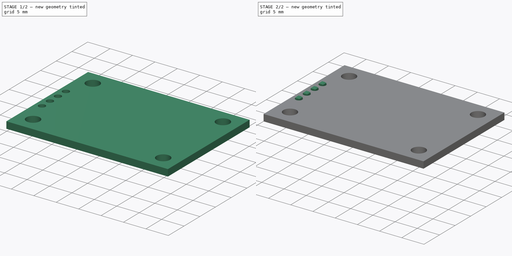
[diagram: build sequence overview — one tinted view per stage of 2, left to right]
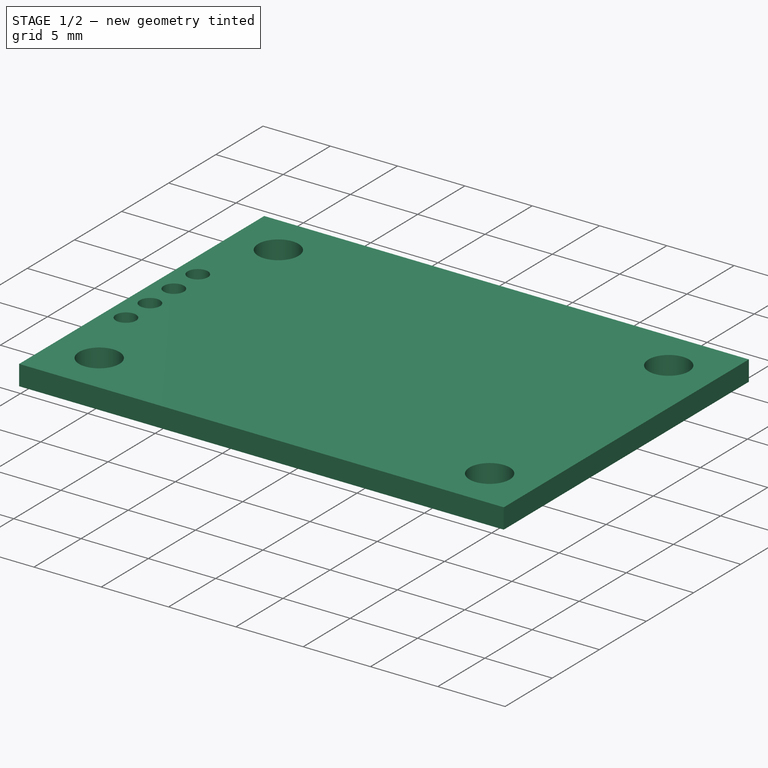
[diagram: stage 1 of 2 — iso view after this stage's code; geometry added in this stage tinted green]
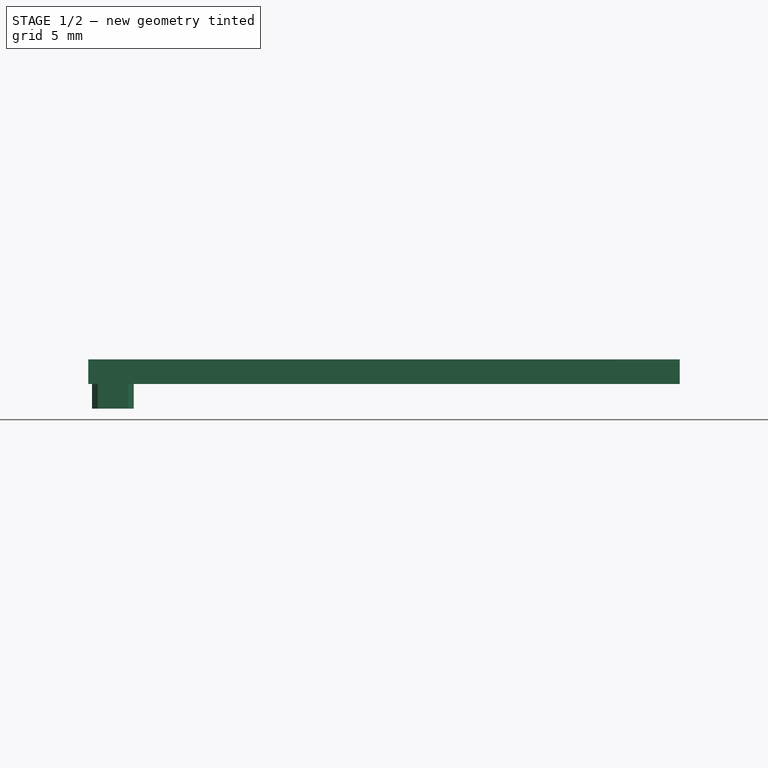
[diagram: stage 1 of 2 — front view after this stage's code; geometry added in this stage tinted green]
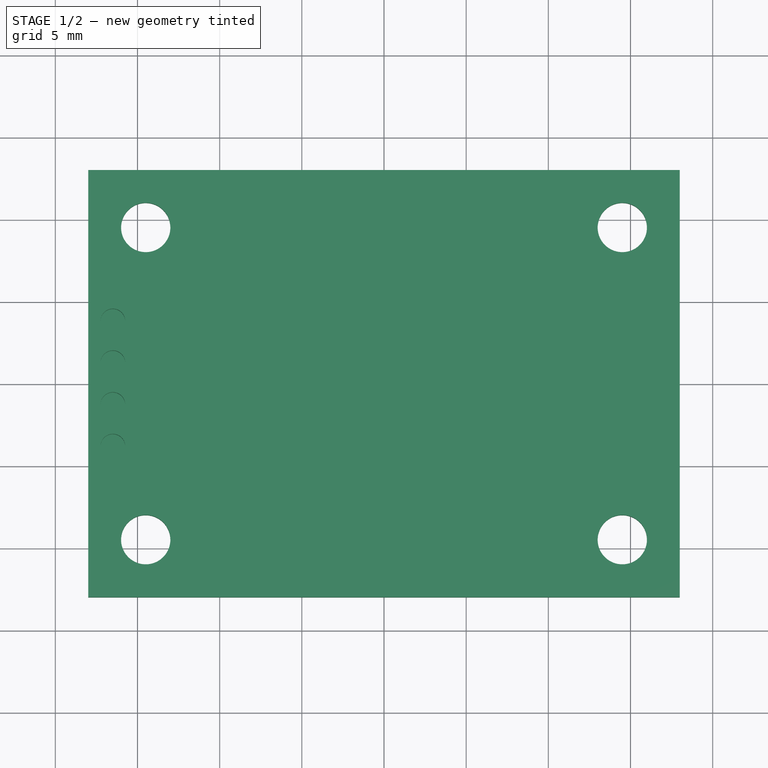
[diagram: stage 1 of 2 — top view after this stage's code; geometry added in this stage tinted green]
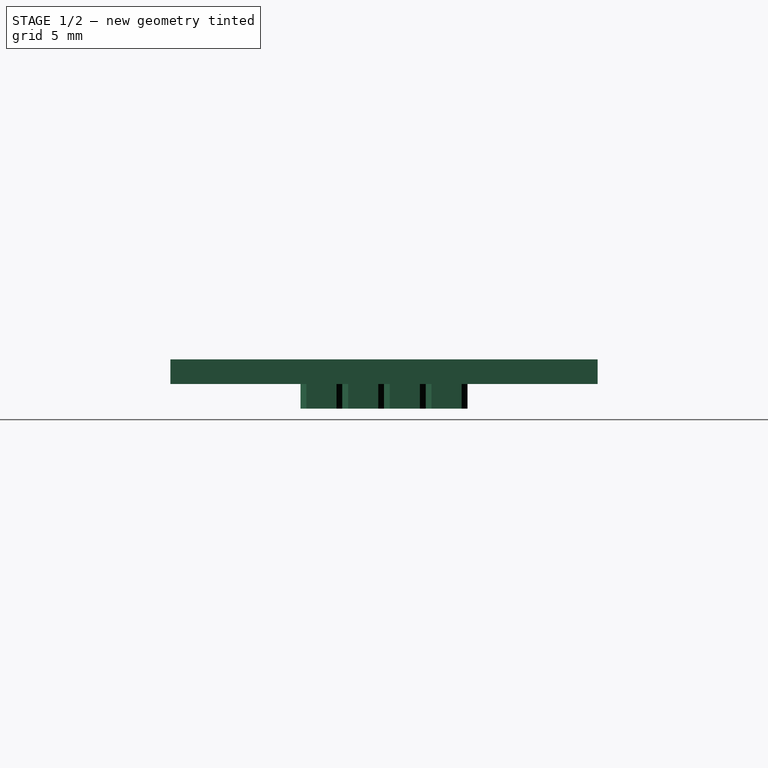
[diagram: stage 1 of 2 — right view after this stage's code; geometry added in this stage tinted green]
FCSTD DOCUMENT  (FreeCAD 1.0R39109 (Git))
Label: HiLetGo_GPS_Module
License: All rights reserved
LicenseURL: https://en.wikipedia.org/wiki/All_rights_reserved
objects: Sketcher::SketchObject×3, PartDesign::Pad×3, PartDesign::Chamfer×1, PartDesign::Body×1
note: 19 computed .brp shape members not serialized (recipe doc carries the construction recipe); baked Part::Feature solids carry a one-line shape summary decoded from their .brp

FEATURE [Sketcher::SketchObject] Sketch
  ArcFitTolerance = 1e-06
  AttachmentSupport = -> [XY_Plane]
  FullyConstrained = true
  MakeInternals = false
  MapMode = 5
  sketch-geometry (12):
    g0: LineSegment StartX=-18 StartY=13 StartZ=0 EndX=-18 EndY=-13 EndZ=0
    g1: LineSegment StartX=-18 StartY=-13 StartZ=0 EndX=18 EndY=-13 EndZ=0
    g2: LineSegment StartX=18 StartY=-13 StartZ=0 EndX=18 EndY=13 EndZ=0
    g3: LineSegment StartX=18 StartY=13 StartZ=0 EndX=-18 EndY=13 EndZ=0
    g4: Circle CenterX=-14.5 CenterY=9.5 CenterZ=0 NormalX=0 NormalY=0 NormalZ=1 AngleXU=0 Radius=1.5
    g5: Circle CenterX=14.5 CenterY=9.5 CenterZ=0 NormalX=0 NormalY=0 NormalZ=1 AngleXU=0 Radius=1.5
    g6: Circle CenterX=14.5 CenterY=-9.5 CenterZ=0 NormalX=0 NormalY=0 NormalZ=1 AngleXU=0 Radius=1.5
    g7: Circle CenterX=-14.5 CenterY=-9.5 CenterZ=0 NormalX=0 NormalY=0 NormalZ=1 AngleXU=0 Radius=1.5
    g8: Circle CenterX=-16.5 CenterY=3.81 CenterZ=0 NormalX=0 NormalY=0 NormalZ=1 AngleXU=0 Radius=0.75
    g9: Circle CenterX=-16.5 CenterY=1.27 CenterZ=0 NormalX=0 NormalY=0 NormalZ=1 AngleXU=0 Radius=0.75
    g10: Circle CenterX=-16.5 CenterY=-1.27 CenterZ=0 NormalX=0 NormalY=0 NormalZ=1 AngleXU=0 Radius=0.75
    g11: Circle CenterX=-16.5 CenterY=-3.81 CenterZ=0 NormalX=0 NormalY=0 NormalZ=1 AngleXU=0 Radius=0.75
  constraints (30):
    c: Coincident(g0,g1)
    c: Coincident(g1,g2)
    c: Coincident(g2,g3)
    c: Coincident(g3,g0)
    c: Vertical(g0)
    c: Vertical(g2)
    c: Horizontal(g1)
    c: Horizontal(g3)
    c: Symmetric(g0,g1,g-1)
    c: DistanceX(g3,g3) = 36
    c: DistanceY(g2,g2) = 26
    c: Equal(g4,g5)
    c: Equal(g4,g6)
    c: Equal(g4,g7)
    c: Diameter(g4) = 3
    c: Symmetric(g4,g5,g-2)
    c: Symmetric(g4,g7,g-1)
    c: Symmetric(g7,g6,g-2)
    c: DistanceX(g4,g5) = 29
    c: DistanceY(g7,g4) = 19
    c: Vertical(g8,g9)
    c: Symmetric(g10,g9,g-1)
    c: Symmetric(g11,g8,g-1)
    c: Distance(g8,g9) = 2.54
    c: DistanceY(g10,g9) = 2.54
    c: Equal(g8,g9)
    c: Equal(g8,g10)
    c: Equal(g8,g11)
    c: Diameter(g8) = 1.5
    c: Distance(g9,g0) = 1.5
FEATURE [PartDesign::Pad] Pad
  Direction = (0,0,1)
  Length = 1.5
  Length2 = 10
  Profile = -> Sketch
  ReferenceAxis = -> Sketch [N_Axis]
  Refine = true
  Suppressed = false
  Type = 0
FEATURE [Sketcher::SketchObject] Sketch001
  ArcFitTolerance = 1e-06
  AttachmentSupport = -> [Pad]
  ExternalGeometry = -> [Sketch]
  FullyConstrained = true
  MakeInternals = false
  MapMode = 5
  Placement = pos=(0,0,0) rot=(1,0,0;3.14159rad)
  sketch-geometry (64):
    g0: LineSegment StartX=-17.77 StartY=4.72645 StartZ=0 EndX=-17.77 EndY=2.89355 EndZ=0
    g1: LineSegment StartX=-17.4164 StartY=2.54 StartZ=0 EndX=-15.5836 EndY=2.54 EndZ=0
    g2: LineSegment StartX=-15.23 StartY=2.89355 StartZ=0 EndX=-15.23 EndY=4.72645 EndZ=0
    g3: LineSegment StartX=-15.5836 StartY=5.08 StartZ=0 EndX=-17.4164 EndY=5.08 EndZ=0
    g4: ArcOfCircle [constr] CenterX=-17.4164 CenterY=4.72645 CenterZ=0 NormalX=0 NormalY=0 NormalZ=1 AngleXU=0 Radius=0.353553 StartAngle=1.5708 EndAngle=3.14159
    g5: GeomPoint [constr] X=-17.77 Y=5.08 Z=0
    g6: LineSegment StartX=-17.4164 StartY=5.08 StartZ=0 EndX=-17.77 EndY=4.72645 EndZ=0
    g7: ArcOfCircle [constr] CenterX=-17.4164 CenterY=2.89355 CenterZ=0 NormalX=0 NormalY=0 NormalZ=1 AngleXU=0 Radius=0.353553 StartAngle=3.14159 EndAngle=4.71239
    g8: GeomPoint [constr] X=-17.77 Y=2.54 Z=0
    g9: LineSegment StartX=-17.77 StartY=2.89355 StartZ=0 EndX=-17.4164 EndY=2.54 EndZ=0
    g10: ArcOfCircle [constr] CenterX=-15.5836 CenterY=2.89355 CenterZ=0 NormalX=0 NormalY=0 NormalZ=1 AngleXU=0 Radius=0.353553 StartAngle=4.71239 EndAngle=6.28319
    g11: GeomPoint [constr] X=-15.23 Y=2.54 Z=0
    g12: LineSegment StartX=-15.5836 StartY=2.54 StartZ=0 EndX=-15.23 EndY=2.89355 EndZ=0
    g13: ArcOfCircle [constr] CenterX=-15.5836 CenterY=4.72645 CenterZ=0 NormalX=0 NormalY=0 NormalZ=1 AngleXU=0 Radius=0.353553 StartAngle=0 EndAngle=1.5708
    g14: GeomPoint [constr] X=-15.23 Y=5.08 Z=0
    g15: LineSegment StartX=-15.23 StartY=4.72645 StartZ=0 EndX=-15.5836 EndY=5.08 EndZ=0
    g16: LineSegment StartX=-17.77 StartY=2.18645 StartZ=0 EndX=-17.77 EndY=0.353553 EndZ=0
    g17: LineSegment StartX=-17.4164 StartY=0 StartZ=0 EndX=-15.5836 EndY=0 EndZ=0
    g18: LineSegment StartX=-15.23 StartY=0.353553 StartZ=0 EndX=-15.23 EndY=2.18645 EndZ=0
    g19: LineSegment StartX=-15.5836 StartY=2.54 StartZ=0 EndX=-17.4164 EndY=2.54 EndZ=0
    g20: ArcOfCircle [constr] CenterX=-17.4164 CenterY=2.18645 CenterZ=0 NormalX=0 NormalY=0 NormalZ=1 AngleXU=0 Radius=0.353553 StartAngle=1.5708 EndAngle=3.14159
    g21: GeomPoint [constr] X=-17.77 Y=2.54 Z=0
    g22: LineSegment StartX=-17.4164 StartY=2.54 StartZ=0 EndX=-17.77 EndY=2.18645 EndZ=0
    g23: ArcOfCircle [constr] CenterX=-15.5836 CenterY=2.18645 CenterZ=0 NormalX=0 NormalY=0 NormalZ=1 AngleXU=0 Radius=0.353553 StartAngle=0 EndAngle=1.5708
    g24: GeomPoint [constr] X=-15.23 Y=2.54 Z=0
    g25: LineSegment StartX=-15.23 StartY=2.18645 StartZ=0 EndX=-15.5836 EndY=2.54 EndZ=0
    g26: ArcOfCircle [constr] CenterX=-15.5836 CenterY=0.353553 CenterZ=0 NormalX=0 NormalY=0 NormalZ=1 AngleXU=0 Radius=0.353553 StartAngle=4.71239 EndAngle=6.28319
    g27: GeomPoint [constr] X=-15.23 Y=0 Z=0
    g28: LineSegment StartX=-15.5836 StartY=0 StartZ=0 EndX=-15.23 EndY=0.353553 EndZ=0
    g29: ArcOfCircle [constr] CenterX=-17.4164 CenterY=0.353553 CenterZ=0 NormalX=0 NormalY=0 NormalZ=1 AngleXU=0 Radius=0.353553 StartAngle=3.14159 EndAngle=4.71239
    g30: GeomPoint [constr] X=-17.77 Y=0 Z=0
    g31: LineSegment StartX=-17.77 StartY=0.353553 StartZ=0 EndX=-17.4164 EndY=0 EndZ=0
    g32: LineSegment StartX=-17.77 StartY=-0.353553 StartZ=0 EndX=-17.77 EndY=-2.18645 EndZ=0
    g33: LineSegment StartX=-17.4164 StartY=-2.54 StartZ=0 EndX=-15.5836 EndY=-2.54 EndZ=0
    g34: LineSegment StartX=-15.23 StartY=-2.18645 StartZ=0 EndX=-15.23 EndY=-0.353553 EndZ=0
    g35: LineSegment StartX=-15.5836 StartY=2.9e-15 StartZ=0 EndX=-17.4164 EndY=2.9e-15 EndZ=0
    g36: ArcOfCircle [constr] CenterX=-17.4164 CenterY=-0.353553 CenterZ=0 NormalX=0 NormalY=0 NormalZ=1 AngleXU=0 Radius=0.353553 StartAngle=1.5708 EndAngle=3.14159
    g37: GeomPoint [constr] X=-17.77 Y=3e-15 Z=0
    g38: LineSegment StartX=-17.4164 StartY=2.9e-15 StartZ=0 EndX=-17.77 EndY=-0.353553 EndZ=0
    g39: ArcOfCircle [constr] CenterX=-15.5836 CenterY=-0.353553 CenterZ=0 NormalX=0 NormalY=0 NormalZ=1 AngleXU=0 Radius=0.353553 StartAngle=0 EndAngle=1.5708
    g40: GeomPoint [constr] X=-15.23 Y=3e-15 Z=0
    g41: LineSegment StartX=-15.23 StartY=-0.353553 StartZ=0 EndX=-15.5836 EndY=2.9e-15 EndZ=0
    g42: ArcOfCircle [constr] CenterX=-15.5836 CenterY=-2.18645 CenterZ=0 NormalX=0 NormalY=0 NormalZ=1 AngleXU=0 Radius=0.353553 StartAngle=4.71239 EndAngle=6.28319
    g43: GeomPoint [constr] X=-15.23 Y=-2.54 Z=0
    g44: LineSegment StartX=-15.5836 StartY=-2.54 StartZ=0 EndX=-15.23 EndY=-2.18645 EndZ=0
    g45: ArcOfCircle [constr] CenterX=-17.4164 CenterY=-2.18645 CenterZ=0 NormalX=0 NormalY=0 NormalZ=1 AngleXU=0 Radius=0.353553 StartAngle=3.14159 EndAngle=4.71239
    g46: GeomPoint [constr] X=-17.77 Y=-2.54 Z=0
    g47: LineSegment StartX=-17.77 StartY=-2.18645 StartZ=0 EndX=-17.4164 EndY=-2.54 EndZ=0
    g48: LineSegment StartX=-17.77 StartY=-2.89355 StartZ=0 EndX=-17.77 EndY=-4.72645 EndZ=0
    g49: LineSegment StartX=-17.4164 StartY=-5.08 StartZ=0 EndX=-15.5836 EndY=-5.08 EndZ=0
    g50: LineSegment StartX=-15.23 StartY=-4.72645 StartZ=0 EndX=-15.23 EndY=-2.89355 EndZ=0
    g51: LineSegment StartX=-15.5836 StartY=-2.54 StartZ=0 EndX=-17.4164 EndY=-2.54 EndZ=0
    g52: ArcOfCircle [constr] CenterX=-17.4164 CenterY=-2.89355 CenterZ=0 NormalX=0 NormalY=0 NormalZ=1 AngleXU=0 Radius=0.353553 StartAngle=1.5708 EndAngle=3.14159
    g53: GeomPoint [constr] X=-17.77 Y=-2.54 Z=0
    g54: LineSegment StartX=-17.4164 StartY=-2.54 StartZ=0 EndX=-17.77 EndY=-2.89355 EndZ=0
    g55: ArcOfCircle [constr] CenterX=-15.5836 CenterY=-2.89355 CenterZ=0 NormalX=0 NormalY=0 NormalZ=1 AngleXU=0 Radius=0.353553 StartAngle=5e-16 EndAngle=1.5708
    g56: GeomPoint [constr] X=-15.23 Y=-2.54 Z=0
    g57: LineSegment StartX=-15.23 StartY=-2.89355 StartZ=0 EndX=-15.5836 EndY=-2.54 EndZ=0
    g58: ArcOfCircle [constr] CenterX=-15.5836 CenterY=-4.72645 CenterZ=0 NormalX=0 NormalY=0 NormalZ=1 AngleXU=0 Radius=0.353553 StartAngle=4.71239 EndAngle=6.28319
    g59: GeomPoint [constr] X=-15.23 Y=-5.08 Z=0
    g60: LineSegment StartX=-15.5836 StartY=-5.08 StartZ=0 EndX=-15.23 EndY=-4.72645 EndZ=0
    g61: ArcOfCircle [constr] CenterX=-17.4164 CenterY=-4.72645 CenterZ=0 NormalX=0 NormalY=0 NormalZ=1 AngleXU=0 Radius=0.353553 StartAngle=3.14159 EndAngle=4.71239
    g62: GeomPoint [constr] X=-17.77 Y=-5.08 Z=0
    g63: LineSegment StartX=-17.77 StartY=-4.72645 StartZ=0 EndX=-17.4164 EndY=-5.08 EndZ=0
  constraints (139):
    c: Vertical(g0)
    c: Vertical(g2)
    c: Horizontal(g1)
    c: Horizontal(g3)
    c: Symmetric(g5,g11,g-3)
    c: Distance(g14,g5) = 2.54
    c: PointOnObject(g5,g3)
    c: PointOnObject(g5,g0)
    c: Tangent(g3,g4) = -1.5708
    c: Tangent(g0,g4) = -1.5708
    c: Coincident(g6,g3)
    c: Coincident(g6,g0)
    c: PointOnObject(g8,g0)
    c: PointOnObject(g8,g1)
    c: Tangent(g0,g7) = -1.5708
    c: Tangent(g1,g7) = -1.5708
    c: Coincident(g9,g0)
    c: Coincident(g9,g1)
    c: PointOnObject(g11,g1)
    c: Tangent(g1,g10) = -1.5708
    c: Tangent(g2,g10) = -1.5708
    c: Coincident(g12,g1)
    c: Coincident(g12,g2)
    c: PointOnObject(g14,g2)
    c: PointOnObject(g14,g3)
    c: Tangent(g2,g13) = -1.5708
    c: Tangent(g3,g13) = -1.5708
    c: Coincident(g15,g2)
    c: Coincident(g15,g3)
    c: Distance(g6,g6) = 0.5
    c: Equal(g6,g15)
    c: Equal(g6,g9)
    c: Equal(g3,g2)
    c: Symmetric(g4,g10,g-3)
    c: Vertical(g16)
    c: Vertical(g18)
    c: Horizontal(g17)
    c: Horizontal(g19)
    c: PointOnObject(g27,g-1)
    c: PointOnObject(g21,g16)
    c: PointOnObject(g21,g19)
    c: Tangent(g16,g20) = -1.5708
    c: Tangent(g19,g20) = -1.5708
    c: Coincident(g22,g16)
    c: Coincident(g22,g19)
    c: PointOnObject(g24,g19)
    c: PointOnObject(g24,g18)
    c: Tangent(g19,g23) = -1.5708
    c: Tangent(g18,g23) = -1.5708
    c: Coincident(g25,g19)
    c: Coincident(g25,g18)
    c: PointOnObject(g27,g18)
    c: PointOnObject(g27,g17)
    c: Tangent(g18,g26) = -1.5708
    c: Tangent(g17,g26) = -1.5708
    c: Coincident(g28,g18)
    c: Coincident(g28,g17)
    c: PointOnObject(g30,g16)
    c: PointOnObject(g30,g17)
    c: Tangent(g16,g29) = -1.5708
    c: Tangent(g17,g29) = -1.5708
    c: Coincident(g31,g16)
    c: Coincident(g31,g17)
    c: Equal(g6,g22)
    c: Equal(g22,g25)
    c: Equal(g22,g31)
    c: Equal(g22,g28)
    c: Equal(g3,g19)
    c: Symmetric(g20,g26,g-4)
    c: Vertical(g32)
    c: Vertical(g34)
    c: Horizontal(g33)
    c: Horizontal(g35)
    c: PointOnObject(g37,g32)
    c: PointOnObject(g37,g35)
    c: Tangent(g32,g36) = -1.5708
    c: Tangent(g35,g36) = -1.5708
    c: Coincident(g38,g32)
    c: Coincident(g38,g35)
    c: PointOnObject(g40,g35)
    c: PointOnObject(g40,g34)
    c: Tangent(g35,g39) = -1.5708
    c: Tangent(g34,g39) = -1.5708
    c: Coincident(g41,g35)
    c: Coincident(g41,g34)
    c: PointOnObject(g43,g34)
    c: PointOnObject(g43,g33)
    c: Tangent(g34,g42) = -1.5708
    c: Tangent(g33,g42) = -1.5708
    c: Coincident(g44,g34)
    c: Coincident(g44,g33)
    c: PointOnObject(g46,g33)
    c: PointOnObject(g46,g32)
    c: Tangent(g33,g45) = -1.5708
    c: Tangent(g32,g45) = -1.5708
    c: Coincident(g47,g33)
    c: Coincident(g47,g32)
    c: Equal(g31,g38)
    c: Equal(g38,g41)
    c: Equal(g41,g44)
    c: Equal(g44,g47)
    c: Equal(g17,g35)
    c: Equal(g35,g34)
    c: Symmetric(g36,g42,g-5)
    c: Vertical(g48)
    c: Vertical(g50)
    c: Horizontal(g49)
    c: Horizontal(g51)
    c: PointOnObject(g53,g48)
    c: PointOnObject(g53,g51)
    c: Tangent(g48,g52) = -1.5708
    c: Tangent(g51,g52) = -1.5708
    c: Coincident(g54,g48)
    c: Coincident(g54,g51)
    c: PointOnObject(g56,g51)
    c: PointOnObject(g56,g50)
    c: Tangent(g51,g55) = -1.5708
    c: Tangent(g50,g55) = -1.5708
    c: Coincident(g57,g51)
    c: Coincident(g57,g50)
    c: PointOnObject(g59,g50)
    c: PointOnObject(g59,g49)
    c: Tangent(g50,g58) = -1.5708
    c: Tangent(g49,g58) = -1.5708
    c: Coincident(g60,g50)
    c: Coincident(g60,g49)
    c: PointOnObject(g62,g49)
    c: PointOnObject(g62,g48)
    c: Tangent(g49,g61) = -1.5708
    c: Tangent(g48,g61) = -1.5708
    c: Coincident(g63,g49)
    c: Coincident(g63,g48)
    c: Equal(g47,g54)
    c: Equal(g54,g57)
    c: Equal(g57,g60)
    c: Equal(g60,g63)
    c: Equal(g33,g51)
    c: Equal(g51,g50)
    c: Symmetric(g52,g58,g-6)
FEATURE [PartDesign::Pad] Pad001
  BaseFeature = -> Pad
  Direction = (0,0,-1)
  Length = 1.5
  Length2 = 10
  Profile = -> Sketch001
  ReferenceAxis = -> Sketch001 [N_Axis]
  Refine = true
  Suppressed = false
  Type = 0
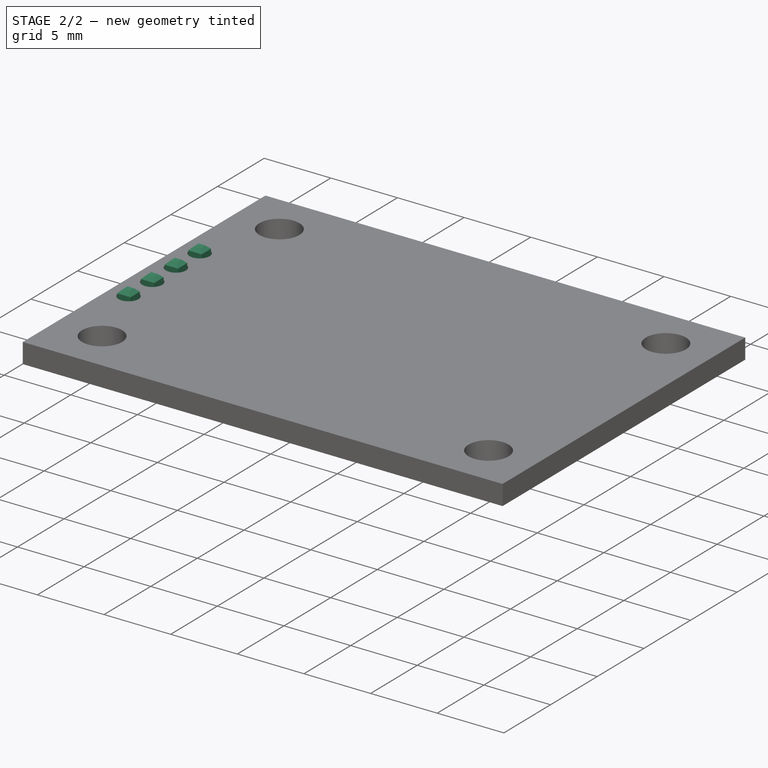
[diagram: stage 2 of 2 — iso view after this stage's code; geometry added in this stage tinted green]
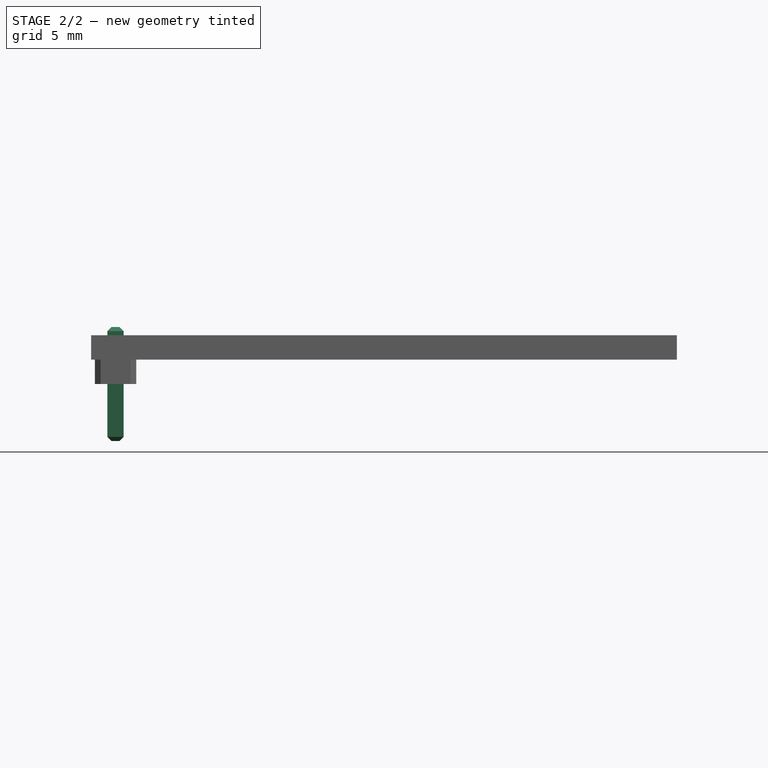
[diagram: stage 2 of 2 — front view after this stage's code; geometry added in this stage tinted green]
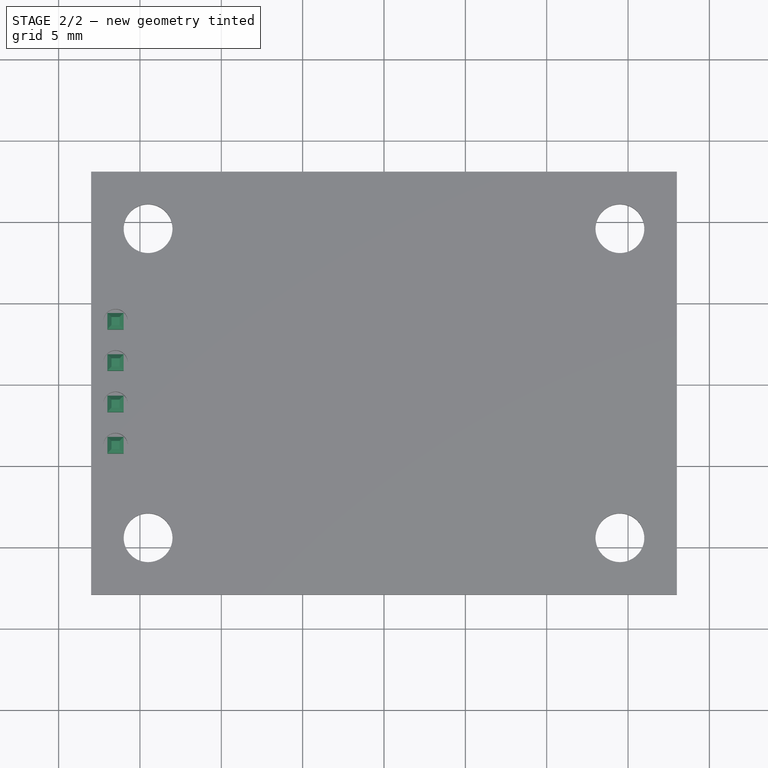
[diagram: stage 2 of 2 — top view after this stage's code; geometry added in this stage tinted green]
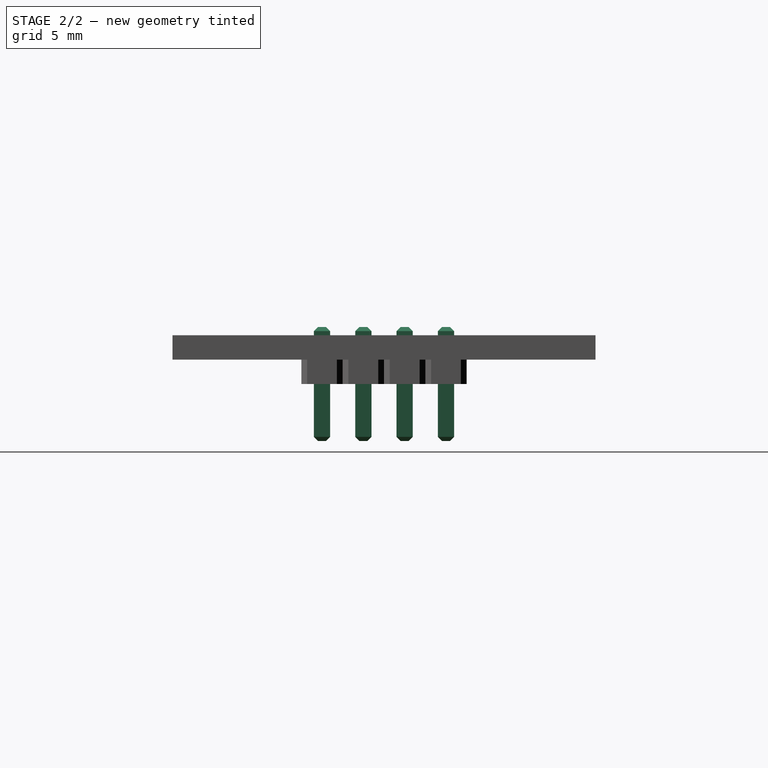
[diagram: stage 2 of 2 — right view after this stage's code; geometry added in this stage tinted green]
FEATURE [Sketcher::SketchObject] Sketch002
  ArcFitTolerance = 1e-06
  AttachmentSupport = -> [Pad001]
  ExternalGeometry = -> [Sketch]
  FullyConstrained = true
  MakeInternals = false
  MapMode = 5
  Placement = pos=(0,0,-1.5) rot=(1,0,0;3.14159rad)
  sketch-geometry (16):
    g0: LineSegment StartX=-17 StartY=4.31 StartZ=0 EndX=-17 EndY=3.31 EndZ=0
    g1: LineSegment StartX=-17 StartY=3.31 StartZ=0 EndX=-16 EndY=3.31 EndZ=0
    g2: LineSegment StartX=-16 StartY=3.31 StartZ=0 EndX=-16 EndY=4.31 EndZ=0
    g3: LineSegment StartX=-16 StartY=4.31 StartZ=0 EndX=-17 EndY=4.31 EndZ=0
    g4: LineSegment StartX=-17 StartY=1.77 StartZ=0 EndX=-17 EndY=0.77 EndZ=0
    g5: LineSegment StartX=-17 StartY=0.77 StartZ=0 EndX=-16 EndY=0.77 EndZ=0
    g6: LineSegment StartX=-16 StartY=0.77 StartZ=0 EndX=-16 EndY=1.77 EndZ=0
    g7: LineSegment StartX=-16 StartY=1.77 StartZ=0 EndX=-17 EndY=1.77 EndZ=0
    g8: LineSegment StartX=-17 StartY=-0.77 StartZ=0 EndX=-17 EndY=-1.77 EndZ=0
    g9: LineSegment StartX=-17 StartY=-1.77 StartZ=0 EndX=-16 EndY=-1.77 EndZ=0
    g10: LineSegment StartX=-16 StartY=-1.77 StartZ=0 EndX=-16 EndY=-0.77 EndZ=0
    g11: LineSegment StartX=-16 StartY=-0.77 StartZ=0 EndX=-17 EndY=-0.77 EndZ=0
    g12: LineSegment StartX=-17 StartY=-3.31 StartZ=0 EndX=-17 EndY=-4.31 EndZ=0
    g13: LineSegment StartX=-17 StartY=-4.31 StartZ=0 EndX=-16 EndY=-4.31 EndZ=0
    g14: LineSegment StartX=-16 StartY=-4.31 StartZ=0 EndX=-16 EndY=-3.31 EndZ=0
    g15: LineSegment StartX=-16 StartY=-3.31 StartZ=0 EndX=-17 EndY=-3.31 EndZ=0
  constraints (46):
    c: Coincident(g0,g1)
    c: Coincident(g1,g2)
    c: Coincident(g2,g3)
    c: Coincident(g3,g0)
    c: Vertical(g0)
    c: Vertical(g2)
    c: Horizontal(g1)
    c: Horizontal(g3)
    c: Coincident(g4,g5)
    c: Coincident(g5,g6)
    c: Coincident(g6,g7)
    c: Coincident(g7,g4)
    c: Vertical(g4)
    c: Vertical(g6)
    c: Horizontal(g5)
    c: Horizontal(g7)
    c: Coincident(g8,g9)
    c: Coincident(g9,g10)
    c: Coincident(g10,g11)
    c: Coincident(g11,g8)
    c: Vertical(g8)
    c: Vertical(g10)
    c: Horizontal(g9)
    c: Horizontal(g11)
    c: Coincident(g12,g13)
    c: Coincident(g13,g14)
    c: Coincident(g14,g15)
    c: Coincident(g15,g12)
    c: Vertical(g12)
    c: Vertical(g14)
    c: Horizontal(g13)
    c: Horizontal(g15)
    c: Equal(g3,g2)
    c: Equal(g7,g6)
    c: Equal(g11,g10)
    c: Equal(g15,g14)
    c: Distance(g3,g3) = 1
    c: Distance(g7,g7) = 1
    c: Distance(g11,g11) = 1
    c: Distance(g15,g15) = 1
    c: Vertical(g0,g4)
    c: Symmetric(g8,g4,g-1)
    c: Symmetric(g12,g0,g-1)
    c: DistanceY(g4,g0) = 2.54
    c: DistanceY(g8,g4) = 2.54
    c: Distance(g4,g-3) = 1
FEATURE [PartDesign::Pad] Pad002
  BaseFeature = -> Pad001
  Direction = (0,0,-1)
  Length = 7
  Length2 = 10
  Midplane = true
  Profile = -> Sketch002
  ReferenceAxis = -> Sketch002 [N_Axis]
  Refine = true
  Suppressed = false
  Type = 0
FEATURE [PartDesign::Chamfer] Chamfer
  Angle = 45
  Base = -> Pad002 [Edge206,Edge190,Edge192,Edge194,Edge187,Edge208,Edge210,Edge203,Edge202,Edge200,Edge198,Edge195,Edge184,Edge186,Edge179,Edge182,Edge158,Edge150,Edge148,Edge154,Edge152,Edge156,Edge162,Edge160,Edge164,Edge166,Edge168,Edge170,Edge172,Edge174,Edge176,Edge178]
  BaseFeature = -> Pad002
  ChamferType = 0
  FlipDirection = false
  Refine = true
  Size = 0.25
  Size2 = 1
  SupportTransform = false
  Suppressed = false
  UseAllEdges = false
FEATURE [PartDesign::Body] Body  label="HiLetGo_GPS_Module"
  AllowCompound = false
  Group = -> [Sketch,Pad,Sketch001,Pad001,Sketch002,Pad002,Chamfer]
  Origin = -> Origin
  Tip = -> Chamfer
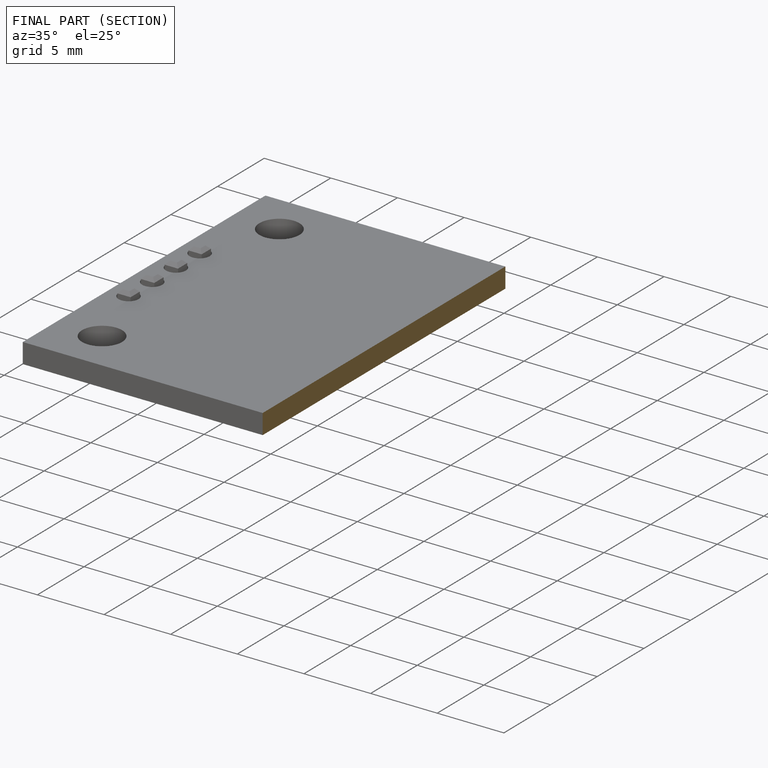
[diagram: finished part — half-section view (interior)]
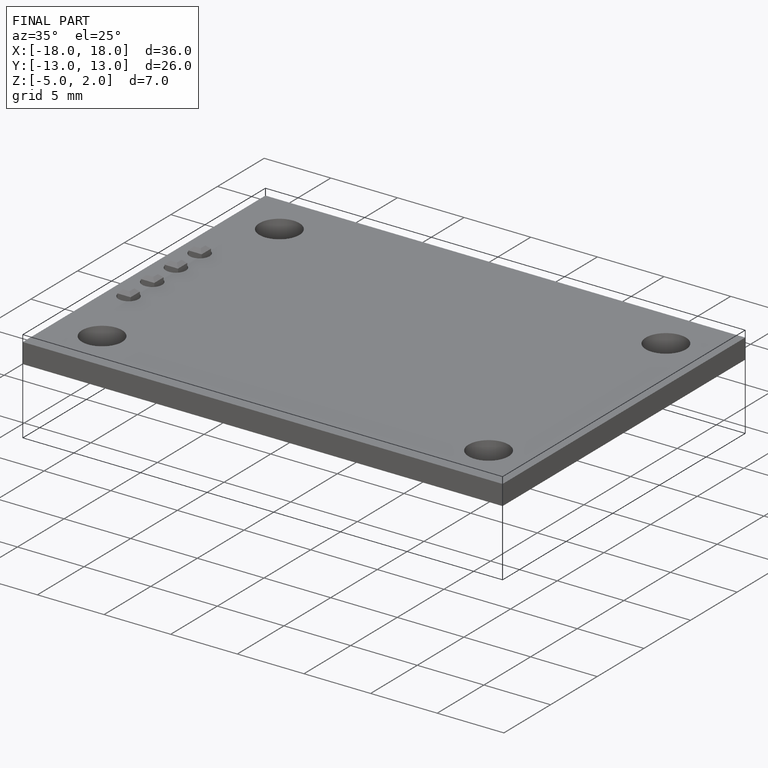
[diagram: finished part — iso view with bounding-box wireframe]
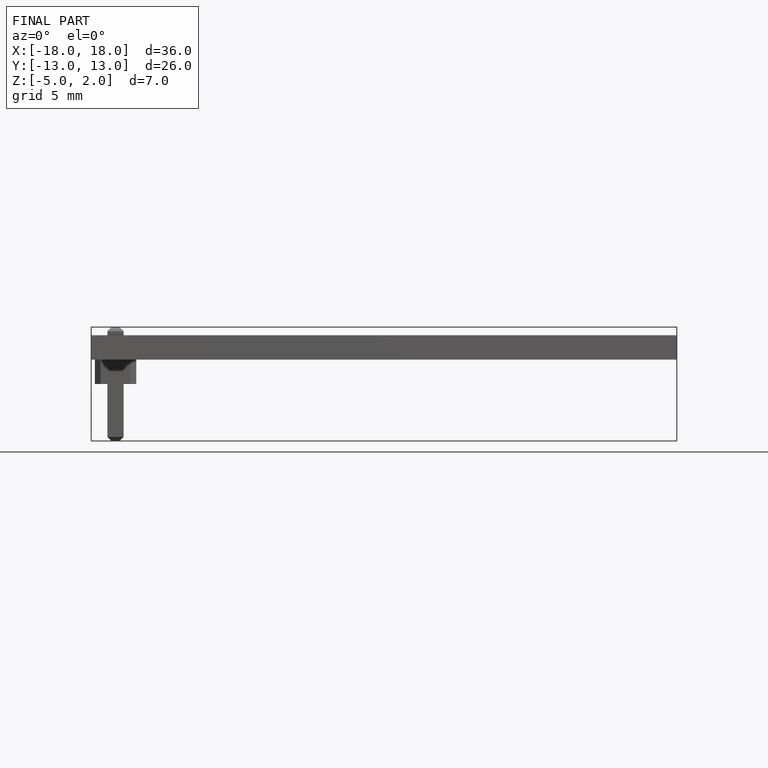
[diagram: finished part — front view with bounding-box wireframe]
